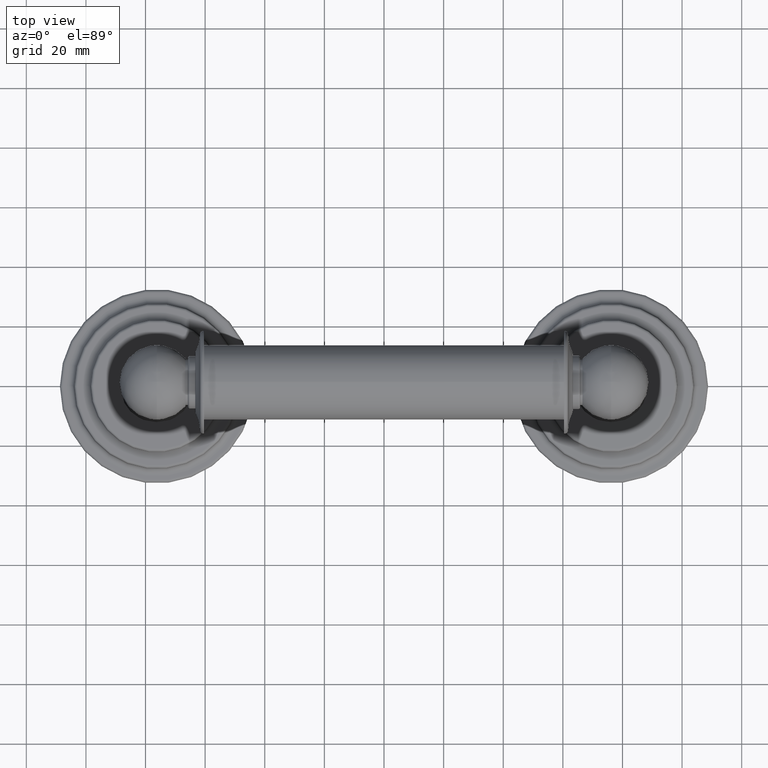
[diagram: clean part render]
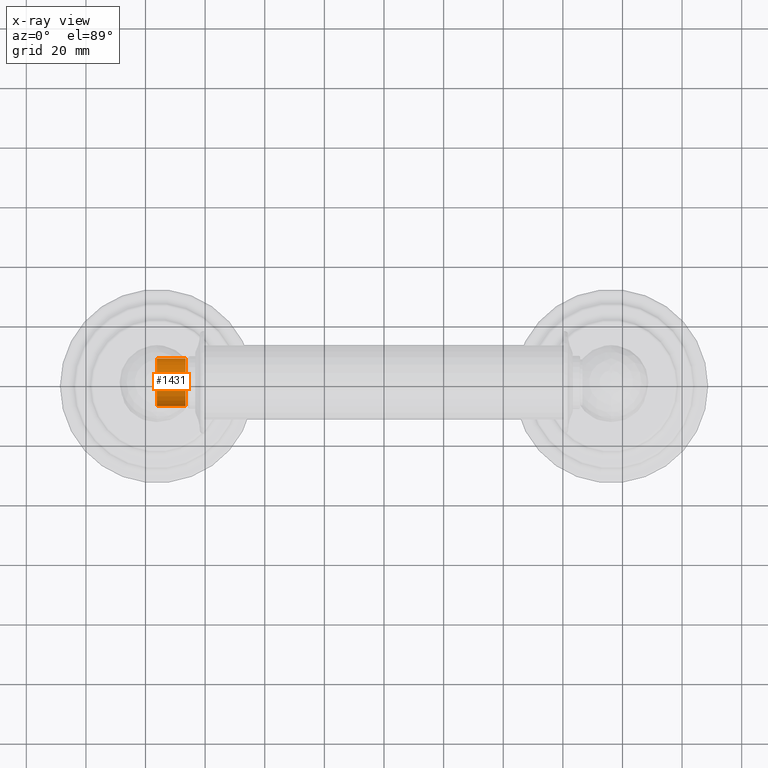
[diagram: x-ray — body ghosted, one internal face saturated and labeled with its STEP entity id]
A machine part, top view, then the same camera in x-ray: the body is ghosted and one INTERNAL B-rep face — a face not visible from any outside direction — is saturated and labeled: STEP entity #1431.
In plain terms, the highlighted cylindrical surface (edge-blend (fillet) strip) has radius 8.001 mm, axis along (-1, 0, 0).
Its self-contained STEP definition (entity closure, byte-faithful):
#589=CARTESIAN_POINT('',(-2.621069839814E0,0.E0,3.012E0));
#590=DIRECTION('',(-1.E0,0.E0,0.E0));
#591=DIRECTION('',(0.E0,1.E0,0.E0));
#592=AXIS2_PLACEMENT_3D('',#589,#590,#591);
#629=DIRECTION('',(-1.E0,0.E0,0.E0));
#630=VECTOR('',#629,3.789301601857E-1);
#631=CARTESIAN_POINT('',(-2.621069839814E0,3.15E-1,3.012E0));
#632=LINE('',#631,#630);
#636=DIRECTION('',(-1.E0,0.E0,0.E0));
#637=VECTOR('',#636,3.789301601857E-1);
#638=CARTESIAN_POINT('',(-2.621069839814E0,-3.15E-1,3.012E0));
#639=LINE('',#638,#637);
#643=CARTESIAN_POINT('',(-3.E0,0.E0,3.012E0));
#644=DIRECTION('',(1.E0,0.E0,0.E0));
#645=DIRECTION('',(0.E0,-1.E0,0.E0));
#646=AXIS2_PLACEMENT_3D('',#643,#644,#645);
#721=CARTESIAN_POINT('',(-3.E0,-3.15E-1,3.012E0));
#722=CARTESIAN_POINT('',(-3.E0,3.15E-1,3.012E0));
#723=VERTEX_POINT('',#721);
#724=VERTEX_POINT('',#722);
#725=CARTESIAN_POINT('',(-2.621069839814E0,3.15E-1,3.012E0));
#726=VERTEX_POINT('',#725);
#727=CARTESIAN_POINT('',(-2.621069839814E0,-3.15E-1,3.012E0));
#728=VERTEX_POINT('',#727);
#1417=CARTESIAN_POINT('',(-3.E0,0.E0,3.012E0));
#1418=DIRECTION('',(-1.E0,0.E0,0.E0));
#1419=DIRECTION('',(0.E0,1.E0,0.E0));
#1420=AXIS2_PLACEMENT_3D('',#1417,#1418,#1419);
#1421=CYLINDRICAL_SURFACE('',#1420,3.15E-1);
#1423=ORIENTED_EDGE('',*,*,#1422,.F.);
#1424=ORIENTED_EDGE('',*,*,#1385,.T.);
#1426=ORIENTED_EDGE('',*,*,#1425,.T.);
#1428=ORIENTED_EDGE('',*,*,#1427,.T.);
#1429=EDGE_LOOP('',(#1423,#1424,#1426,#1428));
#1430=FACE_OUTER_BOUND('',#1429,.F.);
#593=CIRCLE('',#592,3.15E-1);
#647=CIRCLE('',#646,3.15E-1);
#1385=EDGE_CURVE('',#726,#728,#593,.T.);
#1422=EDGE_CURVE('',#726,#724,#632,.T.);
#1425=EDGE_CURVE('',#728,#723,#639,.T.);
#1427=EDGE_CURVE('',#723,#724,#647,.T.);
#1431=ADVANCED_FACE('',(#1430),#1421,.F.);